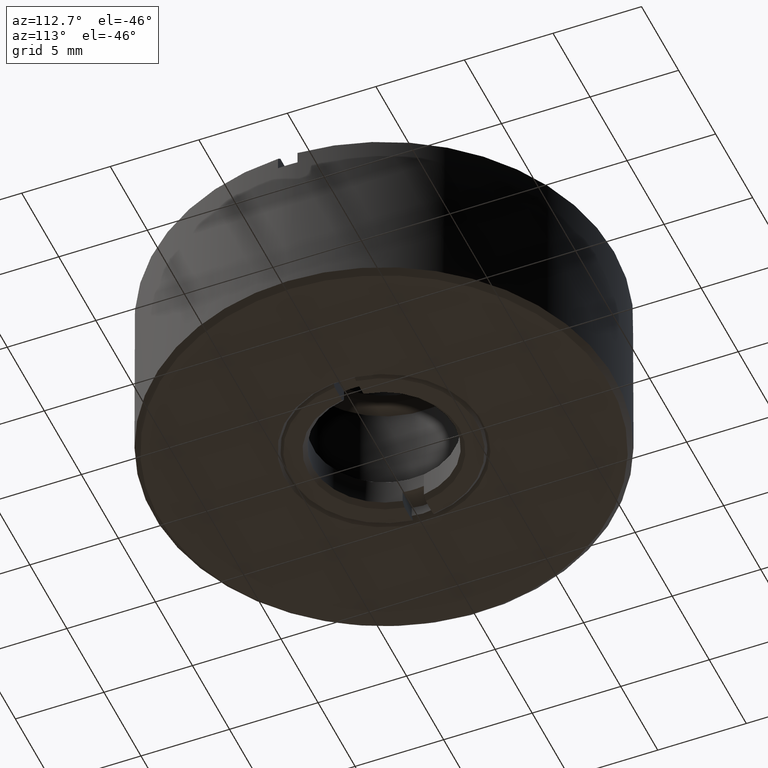
[diagram: clean part render]
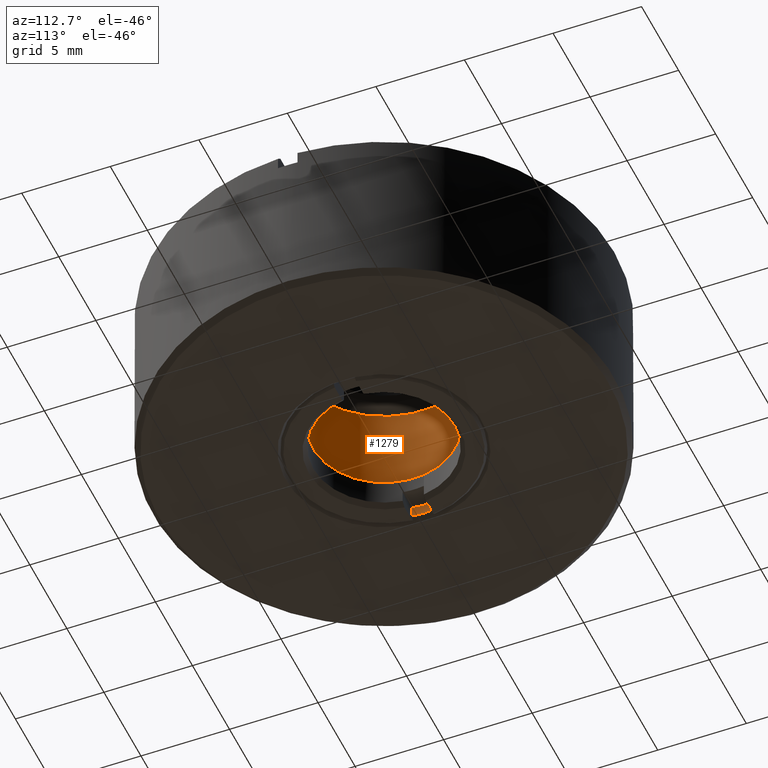
[diagram: same view with one face highlighted and labeled with its STEP entity id]
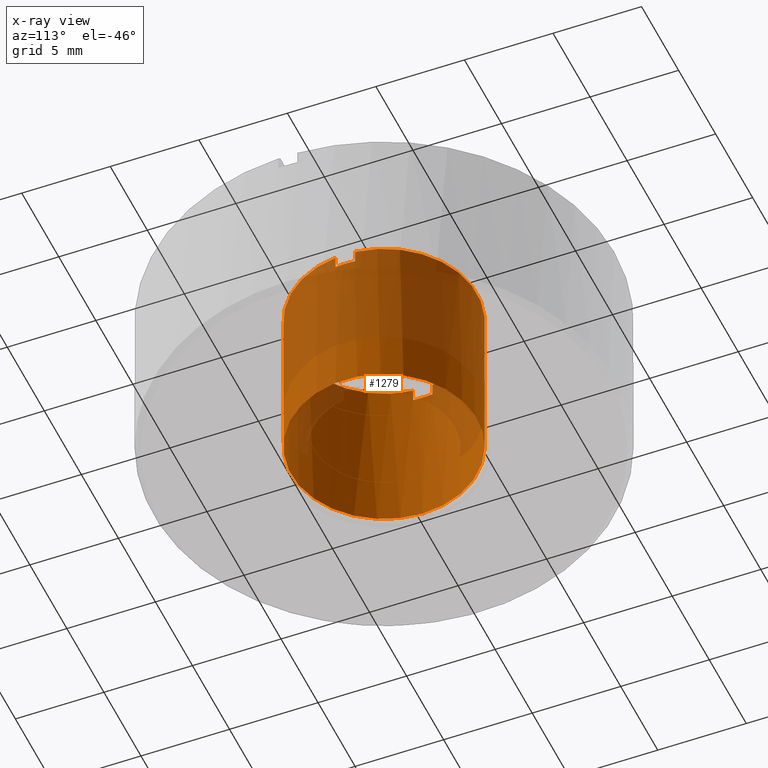
[diagram: x-ray of the same camera — body ghosted, the highlighted face saturated]
A machine part, auxiliary view. The second image highlights one B-rep face of the part: STEP entity #1279.
The next image is the same camera in x-ray: the body ghosted, the highlighted face saturated — about 45% of this face is hidden behind the body in this view.
In plain terms, the highlighted cylindrical surface (bore or boss wall) has radius 5.25 mm, axis along (-0, -0, 1).
Its self-contained STEP definition (entity closure, byte-faithful):
#8 = VECTOR ( 'NONE', #1495, 1000.000000000000000 ) ;
#36 = EDGE_CURVE ( 'NONE', #445, #681, #514, .T. ) ;
#54 = DIRECTION ( 'NONE',  ( 0.000000000000000000, -0.000000000000000000, -1.000000000000000000 ) ) ;
#76 = CARTESIAN_POINT ( 'NONE',  ( 0.000000000000000000, 0.000000000000000000, -5.000000000000000000 ) ) ;
#113 = VECTOR ( 'NONE', #1439, 1000.000000000000000 ) ;
#123 = DIRECTION ( 'NONE',  ( 0.000000000000000000, 0.000000000000000000, -1.000000000000000000 ) ) ;
#140 = VERTEX_POINT ( 'NONE', #773 ) ;
#143 = CIRCLE ( 'NONE', #1017, 5.250000000046384230 ) ;
#156 = DIRECTION ( 'NONE',  ( 1.000000000000000000, 7.105427357601001859E-15, 0.000000000000000000 ) ) ;
#160 = DIRECTION ( 'NONE',  ( -1.000000000000000000, 0.000000000000000000, 0.000000000000000000 ) ) ;
#188 = LINE ( 'NONE', #1231, #113 ) ;
#208 = DIRECTION ( 'NONE',  ( 0.000000000000000000, -0.000000000000000000, 1.000000000000000000 ) ) ;
#211 = EDGE_CURVE ( 'NONE', #515, #761, #431, .T. ) ;
#250 = DIRECTION ( 'NONE',  ( 1.000000000000000000, 0.000000000000000000, 0.000000000000000000 ) ) ;
#254 = VERTEX_POINT ( 'NONE', #552 ) ;
#339 = VERTEX_POINT ( 'NONE', #915 ) ;
#344 = ORIENTED_EDGE ( 'NONE', *, *, #821, .T. ) ;
#391 = CIRCLE ( 'NONE', #438, 5.250000000000000000 ) ;
#394 = EDGE_CURVE ( 'NONE', #140, #339, #1251, .T. ) ;
#431 = CIRCLE ( 'NONE', #726, 5.250000000000000000 ) ;
#438 = AXIS2_PLACEMENT_3D ( 'NONE', #1598, #869, #439 ) ;
#439 = DIRECTION ( 'NONE',  ( 1.000000000000000000, 0.000000000000000000, 0.000000000000000000 ) ) ;
#445 = VERTEX_POINT ( 'NONE', #735 ) ;
#464 = AXIS2_PLACEMENT_3D ( 'NONE', #76, #466, #945 ) ;
#466 = DIRECTION ( 'NONE',  ( -0.000000000000000000, -0.000000000000000000, 1.000000000000000000 ) ) ;
#476 = CARTESIAN_POINT ( 'NONE',  ( 0.000000000000000000, 0.000000000000000000, 4.700000000000000178 ) ) ;
#514 = CIRCLE ( 'NONE', #1011, 5.250000000000000000 ) ;
#515 = VERTEX_POINT ( 'NONE', #965 ) ;
#518 = DIRECTION ( 'NONE',  ( -0.000000000000000000, -0.000000000000000000, -1.000000000000000000 ) ) ;
#552 = CARTESIAN_POINT ( 'NONE',  ( 5.221110992882644908, -0.5500000000000000444, 4.000000000000000888 ) ) ;
#667 = ORIENTED_EDGE ( 'NONE', *, *, #1473, .T. ) ;
#681 = VERTEX_POINT ( 'NONE', #1179 ) ;
#712 = VERTEX_POINT ( 'NONE', #849 ) ;
#726 = AXIS2_PLACEMENT_3D ( 'NONE', #1271, #907, #156 ) ;
#735 = CARTESIAN_POINT ( 'NONE',  ( 5.221110992882644908, -0.5500000000000000444, 4.700000000012187762 ) ) ;
#761 = VERTEX_POINT ( 'NONE', #1193 ) ;
#773 = CARTESIAN_POINT ( 'NONE',  ( -5.221110992882644908, 0.5500000000000000444, 4.700000000012187762 ) ) ;
#778 = EDGE_LOOP ( 'NONE', ( #667 ) ) ;
#818 = CYLINDRICAL_SURFACE ( 'NONE', #464, 5.250000000000000000 ) ;
#821 = EDGE_CURVE ( 'NONE', #712, #339, #1468, .T. ) ;
#840 = DIRECTION ( 'NONE',  ( 0.000000000000000000, 0.000000000000000000, -1.000000000000000000 ) ) ;
#849 = CARTESIAN_POINT ( 'NONE',  ( 5.221110992882644908, 0.5500000000000000444, 4.000000000000000000 ) ) ;
#869 = DIRECTION ( 'NONE',  ( 0.000000000000000000, 0.000000000000000000, -1.000000000000000000 ) ) ;
#874 = LINE ( 'NONE', #1236, #8 ) ;
#876 = CARTESIAN_POINT ( 'NONE',  ( -5.250000000046384230, 0.000000000000000000, -4.700000000013915269 ) ) ;
#888 = VECTOR ( 'NONE', #54, 1000.000000000000000 ) ;
#899 = ORIENTED_EDGE ( 'NONE', *, *, #36, .F. ) ;
#905 = EDGE_CURVE ( 'NONE', #140, #761, #874, .T. ) ;
#907 = DIRECTION ( 'NONE',  ( 0.000000000000000000, 0.000000000000000000, -1.000000000000000000 ) ) ;
#915 = CARTESIAN_POINT ( 'NONE',  ( 5.221110992876768719, 0.5500000000000000444, 4.700000000006343548 ) ) ;
#919 = CARTESIAN_POINT ( 'NONE',  ( 0.000000000000000000, 0.000000000000000000, -4.700000000013915269 ) ) ;
#945 = DIRECTION ( 'NONE',  ( 1.000000000000000000, 0.000000000000000000, 0.000000000000000000 ) ) ;
#948 = CARTESIAN_POINT ( 'NONE',  ( 5.221110992882644908, 0.5500000000000000444, 4.000000000000000000 ) ) ;
#950 = ORIENTED_EDGE ( 'NONE', *, *, #394, .F. ) ;
#965 = CARTESIAN_POINT ( 'NONE',  ( -5.221110992882644908, -0.5500000000000000444, 4.000000000000000000 ) ) ;
#1011 = AXIS2_PLACEMENT_3D ( 'NONE', #1093, #123, #250 ) ;
#1017 = AXIS2_PLACEMENT_3D ( 'NONE', #919, #518, #160 ) ;
#1067 = FACE_OUTER_BOUND ( 'NONE', #778, .T. ) ;
#1081 = EDGE_CURVE ( 'NONE', #445, #254, #1176, .T. ) ;
#1088 = FACE_OUTER_BOUND ( 'NONE', #1160, .T. ) ;
#1093 = CARTESIAN_POINT ( 'NONE',  ( 0.000000000000000000, 0.000000000000000000, 4.700000000000000178 ) ) ;
#1160 = EDGE_LOOP ( 'NONE', ( #1499, #344, #950, #1173, #1438, #1240, #899, #1328 ) ) ;
#1161 = CARTESIAN_POINT ( 'NONE',  ( 5.221110992882644908, -0.5500000000000000444, 4.000000000000000000 ) ) ;
#1173 = ORIENTED_EDGE ( 'NONE', *, *, #905, .T. ) ;
#1176 = LINE ( 'NONE', #1161, #888 ) ;
#1179 = CARTESIAN_POINT ( 'NONE',  ( -5.221110992876768719, -0.5500000000000000444, 4.700000000006343548 ) ) ;
#1193 = CARTESIAN_POINT ( 'NONE',  ( -5.221110992882644908, 0.5500000000000000444, 4.000000000000000888 ) ) ;
#1211 = DIRECTION ( 'NONE',  ( 1.000000000000000000, 0.000000000000000000, 0.000000000000000000 ) ) ;
#1231 = CARTESIAN_POINT ( 'NONE',  ( -5.221110992882644908, -0.5500000000000000444, 4.000000000000000000 ) ) ;
#1236 = CARTESIAN_POINT ( 'NONE',  ( -5.221110992882644908, 0.5500000000000000444, 4.000000000000000000 ) ) ;
#1240 = ORIENTED_EDGE ( 'NONE', *, *, #1597, .T. ) ;
#1251 = CIRCLE ( 'NONE', #1383, 5.250000000000000000 ) ;
#1271 = CARTESIAN_POINT ( 'NONE',  ( 0.000000000000000000, 0.000000000000000000, 4.000000000000000888 ) ) ;
#1279 = ADVANCED_FACE ( 'NONE', ( #1088, #1067 ), #818, .F. ) ;
#1305 = VECTOR ( 'NONE', #208, 1000.000000000000000 ) ;
#1328 = ORIENTED_EDGE ( 'NONE', *, *, #1081, .T. ) ;
#1383 = AXIS2_PLACEMENT_3D ( 'NONE', #476, #840, #1211 ) ;
#1438 = ORIENTED_EDGE ( 'NONE', *, *, #211, .F. ) ;
#1439 = DIRECTION ( 'NONE',  ( -0.000000000000000000, 0.000000000000000000, 1.000000000000000000 ) ) ;
#1468 = LINE ( 'NONE', #948, #1305 ) ;
#1473 = EDGE_CURVE ( 'NONE', #1490, #1490, #143, .T. ) ;
#1490 = VERTEX_POINT ( 'NONE', #876 ) ;
#1495 = DIRECTION ( 'NONE',  ( -0.000000000000000000, 0.000000000000000000, -1.000000000000000000 ) ) ;
#1499 = ORIENTED_EDGE ( 'NONE', *, *, #1605, .F. ) ;
#1597 = EDGE_CURVE ( 'NONE', #515, #681, #188, .T. ) ;
#1598 = CARTESIAN_POINT ( 'NONE',  ( 0.000000000000000000, 0.000000000000000000, 4.000000000000000888 ) ) ;
#1605 = EDGE_CURVE ( 'NONE', #712, #254, #391, .T. ) ;